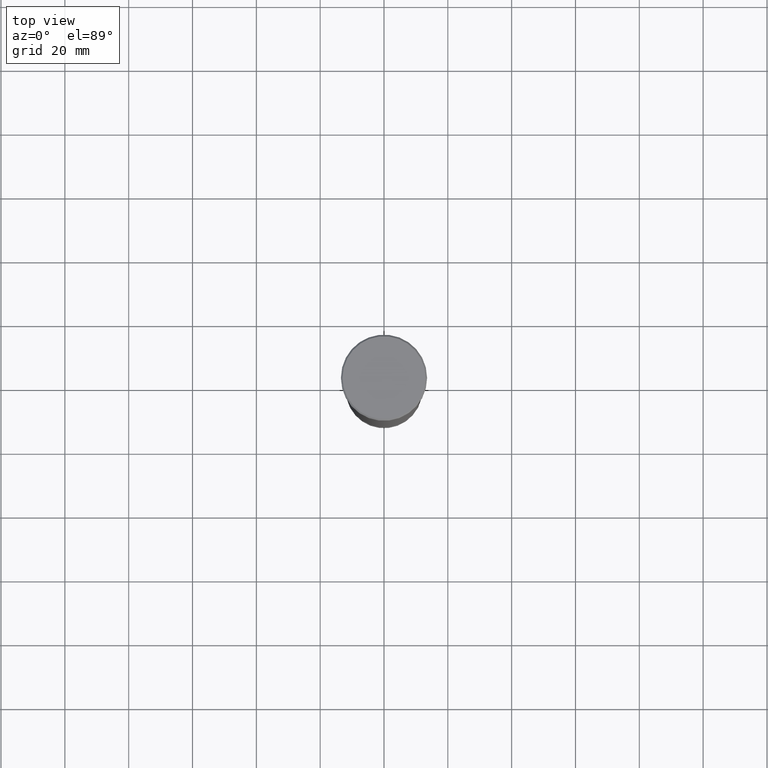
[diagram: clean part render]
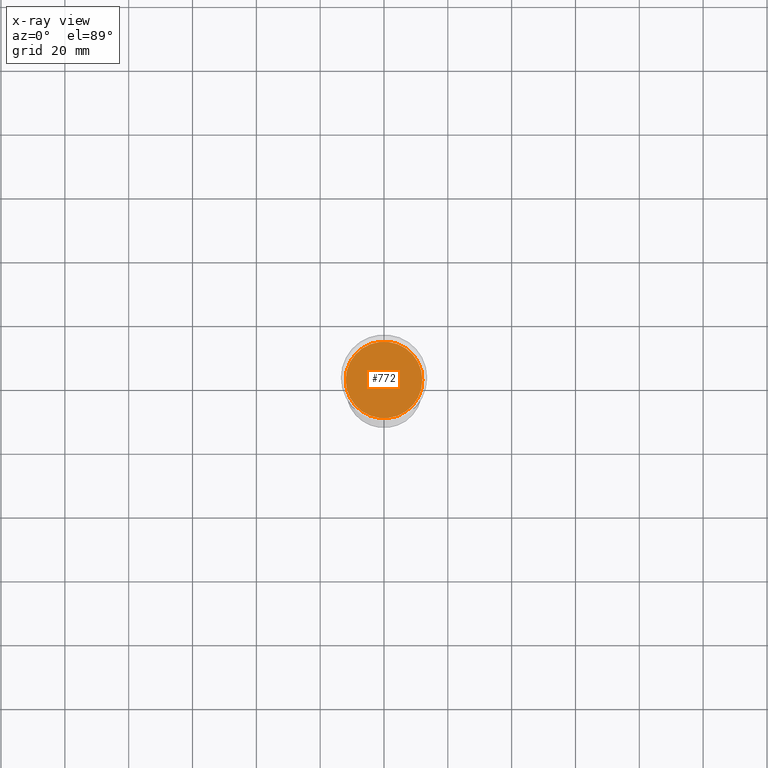
[diagram: x-ray — body ghosted, one internal face saturated and labeled with its STEP entity id]
A machine part, top view, then the same camera in x-ray: the body is ghosted and one INTERNAL B-rep face — a face not visible from any outside direction — is saturated and labeled: STEP entity #772.
In plain terms, the highlighted planar face has unit normal (0, 0, -1).
Its self-contained STEP definition (entity closure, byte-faithful):
#29 = CARTESIAN_POINT ( 'NONE',  ( -12.00000000000000178, 1.469576158976824144E-15, -41.99999999999999289 ) ) ;
#125 = CIRCLE ( 'NONE', #228, 12.00000000000000178 ) ;
#212 = DIRECTION ( 'NONE',  ( -0.000000000000000000, -0.000000000000000000, 1.000000000000000000 ) ) ;
#228 = AXIS2_PLACEMENT_3D ( 'NONE', #850, #951, #1143 ) ;
#254 = ORIENTED_EDGE ( 'NONE', *, *, #1090, .T. ) ;
#419 = VERTEX_POINT ( 'NONE', #1112 ) ;
#446 = CIRCLE ( 'NONE', #1036, 12.00000000000000178 ) ;
#509 = FACE_OUTER_BOUND ( 'NONE', #659, .T. ) ;
#510 = ORIENTED_EDGE ( 'NONE', *, *, #1068, .T. ) ;
#535 = AXIS2_PLACEMENT_3D ( 'NONE', #688, #761, #962 ) ;
#567 = DIRECTION ( 'NONE',  ( 1.000000000000000000, 0.000000000000000000, 0.000000000000000000 ) ) ;
#574 = CARTESIAN_POINT ( 'NONE',  ( 0.000000000000000000, 0.000000000000000000, -41.99999999999999289 ) ) ;
#659 = EDGE_LOOP ( 'NONE', ( #254, #510 ) ) ;
#688 = CARTESIAN_POINT ( 'NONE',  ( 0.000000000000000000, 0.000000000000000000, -41.99999999999999289 ) ) ;
#727 = VERTEX_POINT ( 'NONE', #29 ) ;
#761 = DIRECTION ( 'NONE',  ( 0.000000000000000000, 0.000000000000000000, -1.000000000000000000 ) ) ;
#772 = ADVANCED_FACE ( 'NONE', ( #509 ), #1129, .F. ) ;
#850 = CARTESIAN_POINT ( 'NONE',  ( 0.000000000000000000, 0.000000000000000000, -41.99999999999999289 ) ) ;
#951 = DIRECTION ( 'NONE',  ( -0.000000000000000000, -0.000000000000000000, 1.000000000000000000 ) ) ;
#962 = DIRECTION ( 'NONE',  ( -1.000000000000000000, 0.000000000000000000, -0.000000000000000000 ) ) ;
#1036 = AXIS2_PLACEMENT_3D ( 'NONE', #574, #212, #567 ) ;
#1068 = EDGE_CURVE ( 'NONE', #727, #419, #125, .T. ) ;
#1090 = EDGE_CURVE ( 'NONE', #419, #727, #446, .T. ) ;
#1112 = CARTESIAN_POINT ( 'NONE',  ( 12.00000000000000178, 0.000000000000000000, -41.99999999999999289 ) ) ;
#1129 = PLANE ( 'NONE',  #535 ) ;
#1143 = DIRECTION ( 'NONE',  ( 1.000000000000000000, 0.000000000000000000, 0.000000000000000000 ) ) ;